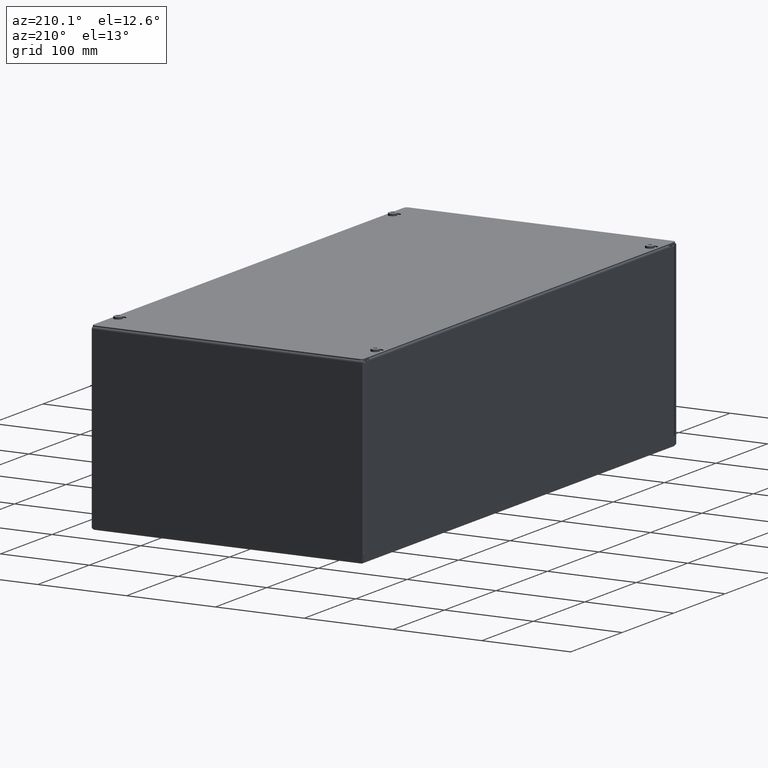
[diagram: clean part render]
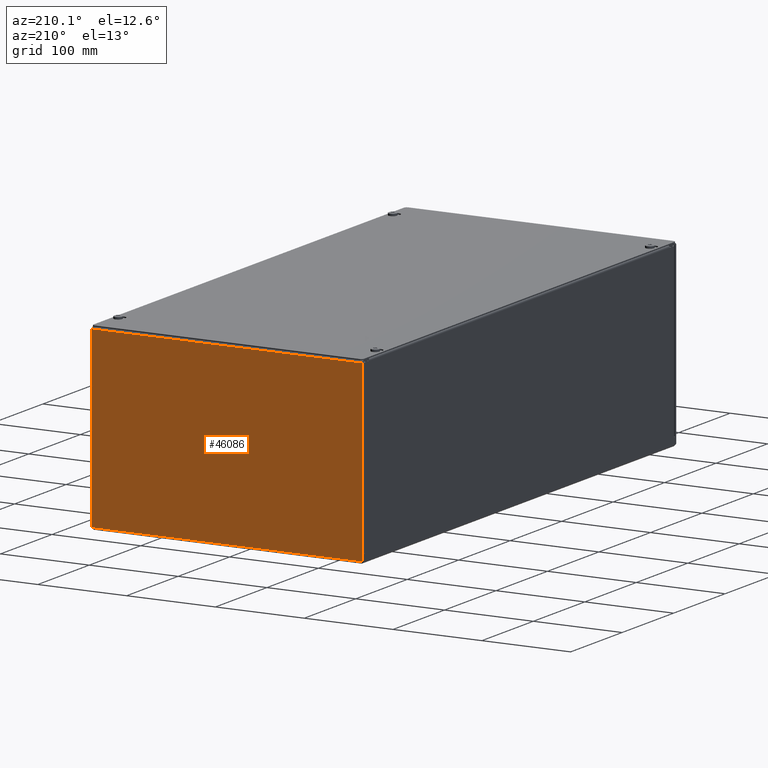
[diagram: same view with one face highlighted and labeled with its STEP entity id]
A machine part, auxiliary view. The second image highlights one B-rep face of the part: STEP entity #46086.
In plain terms, the highlighted planar face has unit normal (-0, 1, 0).
Its self-contained STEP definition (entity closure, byte-faithful):
#4494=PLANE('',#48887);
#6203=FACE_OUTER_BOUND('',#8721,.T.);
#8721=EDGE_LOOP('',(#33462,#33463,#33464,#33465));
#11680=LINE('',#61243,#16605);
#11688=LINE('',#61265,#16613);
#11691=LINE('',#61271,#16616);
#11692=LINE('',#61272,#16617);
#16605=VECTOR('',#51814,0.393700787401575);
#16613=VECTOR('',#51842,0.393700787401575);
#16616=VECTOR('',#51847,0.393700787401575);
#16617=VECTOR('',#51848,0.393700787401575);
#21765=VERTEX_POINT('',#61240);
#21766=VERTEX_POINT('',#61242);
#21770=VERTEX_POINT('',#61264);
#21772=VERTEX_POINT('',#61270);
#26326=EDGE_CURVE('',#21766,#21765,#11680,.T.);
#26337=EDGE_CURVE('',#21770,#21766,#11688,.T.);
#26340=EDGE_CURVE('',#21765,#21772,#11691,.T.);
#26341=EDGE_CURVE('',#21772,#21770,#11692,.T.);
#33462=ORIENTED_EDGE('',*,*,#26326,.T.);
#33463=ORIENTED_EDGE('',*,*,#26340,.T.);
#33464=ORIENTED_EDGE('',*,*,#26341,.T.);
#33465=ORIENTED_EDGE('',*,*,#26337,.T.);
#46086=ADVANCED_FACE('',(#6203),#4494,.T.);
#48887=AXIS2_PLACEMENT_3D('',#61269,#51845,#51846);
#51814=DIRECTION('',(1.,3.24440954843454E-32,0.));
#51842=DIRECTION('',(0.,-6.12323399573677E-17,1.));
#51845=DIRECTION('center_axis',(-3.24440954843454E-32,1.,2.64622153794192E-31));
#51846=DIRECTION('ref_axis',(0.,-2.64622153794192E-31,1.));
#51847=DIRECTION('',(0.,6.12323399573677E-17,-1.));
#51848=DIRECTION('',(-1.,-3.24440954843454E-32,0.));
#61240=CARTESIAN_POINT('',(6.,12.,7.901));
#61242=CARTESIAN_POINT('',(-6.,12.,7.901));
#61243=CARTESIAN_POINT('',(-3.,12.,7.901));
#61264=CARTESIAN_POINT('',(-6.,12.,0.099));
#61265=CARTESIAN_POINT('',(-6.,12.,0.));
#61269=CARTESIAN_POINT('Origin',(0.,12.,4.));
#61270=CARTESIAN_POINT('',(6.,12.,0.099));
#61271=CARTESIAN_POINT('',(6.,12.,8.));
#61272=CARTESIAN_POINT('',(-3.,12.,0.0989999999999999));